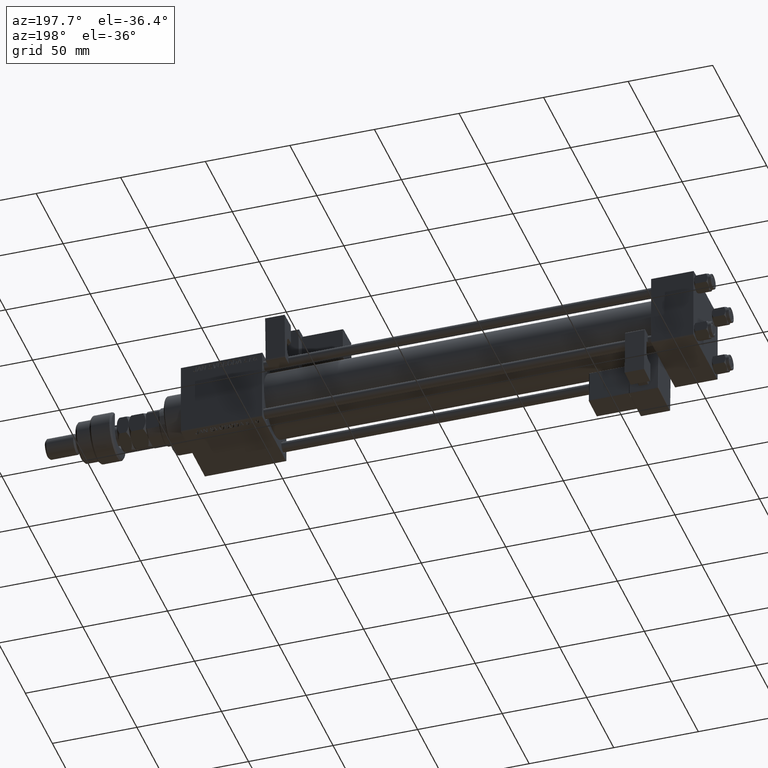
[diagram: clean part render]
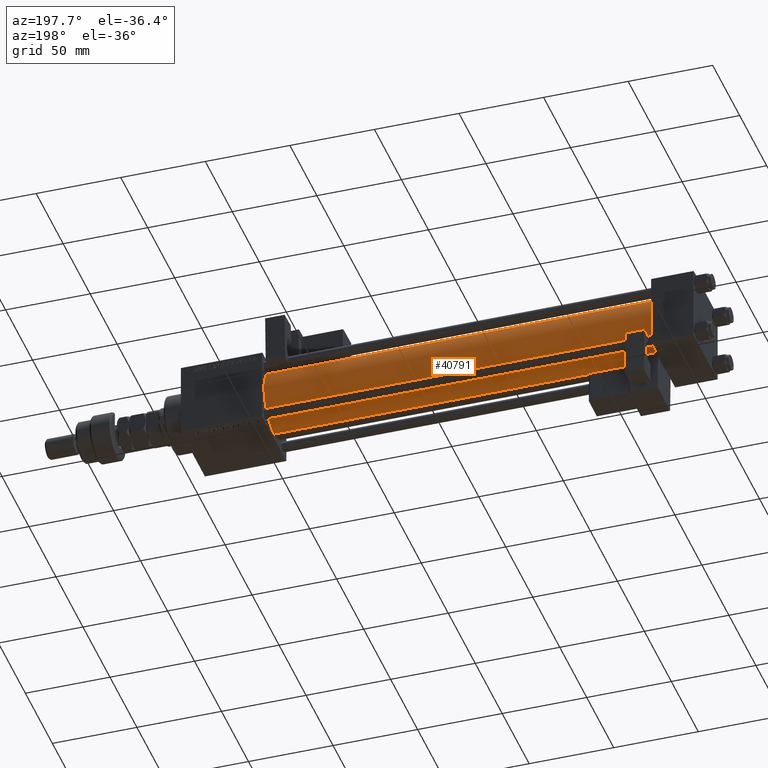
[diagram: same view with one face highlighted and labeled with its STEP entity id]
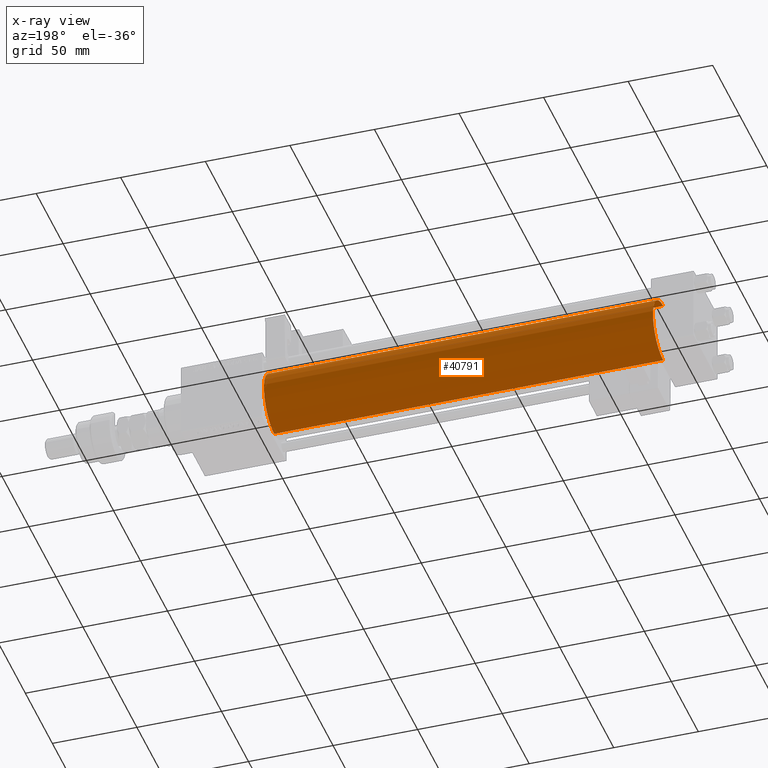
[diagram: x-ray of the same camera — body ghosted, the highlighted face saturated]
A machine part, auxiliary view. The second image highlights one B-rep face of the part: STEP entity #40791.
The next image is the same camera in x-ray: the body ghosted, the highlighted face saturated — about 0% of this face is hidden behind the body in this view.
In plain terms, the highlighted cylindrical surface (edge-blend (fillet) strip) has radius 19 mm, axis along (-1, -0, -0).
Its self-contained STEP definition (entity closure, byte-faithful):
#135 = VERTEX_POINT ( 'NONE', #21557 ) ;
#841 = DIRECTION ( 'NONE',  ( 0.000000000000000000, 0.000000000000000000, 1.000000000000000000 ) ) ;
#1352 = VERTEX_POINT ( 'NONE', #4968 ) ;
#1991 = ORIENTED_EDGE ( 'NONE', *, *, #30028, .T. ) ;
#4108 = EDGE_LOOP ( 'NONE', ( #31234, #19275, #1991, #12945 ) ) ;
#4968 = CARTESIAN_POINT ( 'NONE',  ( 255.0000000000000000, -2.602085213965210642E-15, 19.00000000000000000 ) ) ;
#5061 = DIRECTION ( 'NONE',  ( -1.000000000000000000, -0.000000000000000000, -0.000000000000000000 ) ) ;
#5332 = FACE_OUTER_BOUND ( 'NONE', #4108, .T. ) ;
#9006 = CIRCLE ( 'NONE', #24210, 19.00000000000000000 ) ;
#9415 = AXIS2_PLACEMENT_3D ( 'NONE', #43447, #5061, #841 ) ;
#10088 = CYLINDRICAL_SURFACE ( 'NONE', #9415, 19.00000000000000000 ) ;
#10960 = DIRECTION ( 'NONE',  ( -1.000000000000000000, -0.000000000000000000, -0.000000000000000000 ) ) ;
#11232 = LINE ( 'NONE', #28328, #47563 ) ;
#12945 = ORIENTED_EDGE ( 'NONE', *, *, #36041, .F. ) ;
#16533 = LINE ( 'NONE', #50169, #32337 ) ;
#16833 = DIRECTION ( 'NONE',  ( 0.000000000000000000, 0.000000000000000000, -1.000000000000000000 ) ) ;
#18837 = DIRECTION ( 'NONE',  ( 1.000000000000000000, -0.000000000000000000, 0.000000000000000000 ) ) ;
#19275 = ORIENTED_EDGE ( 'NONE', *, *, #35148, .T. ) ;
#20052 = VERTEX_POINT ( 'NONE', #44560 ) ;
#21557 = CARTESIAN_POINT ( 'NONE',  ( 24.99999999999999289, -2.752562955852396712E-16, -19.00000000000000000 ) ) ;
#23050 = CARTESIAN_POINT ( 'NONE',  ( 24.99999999999999289, -2.602085213965210642E-15, 0.000000000000000000 ) ) ;
#24210 = AXIS2_PLACEMENT_3D ( 'NONE', #23050, #18837, #45994 ) ;
#25215 = DIRECTION ( 'NONE',  ( -1.000000000000000000, -0.000000000000000000, -0.000000000000000000 ) ) ;
#25910 = VERTEX_POINT ( 'NONE', #42062 ) ;
#28328 = CARTESIAN_POINT ( 'NONE',  ( 255.0000000000000000, -2.602085213965210642E-15, 19.00000000000000000 ) ) ;
#29997 = DIRECTION ( 'NONE',  ( 1.000000000000000000, 0.000000000000000000, 0.000000000000000000 ) ) ;
#30028 = EDGE_CURVE ( 'NONE', #135, #25910, #9006, .T. ) ;
#30734 = CIRCLE ( 'NONE', #46828, 19.00000000000000000 ) ;
#31234 = ORIENTED_EDGE ( 'NONE', *, *, #39875, .F. ) ;
#32337 = VECTOR ( 'NONE', #25215, 1000.000000000000000 ) ;
#35148 = EDGE_CURVE ( 'NONE', #20052, #135, #16533, .T. ) ;
#36041 = EDGE_CURVE ( 'NONE', #1352, #25910, #11232, .T. ) ;
#39875 = EDGE_CURVE ( 'NONE', #20052, #1352, #30734, .T. ) ;
#40791 = ADVANCED_FACE ( 'NONE', ( #5332 ), #10088, .T. ) ;
#42062 = CARTESIAN_POINT ( 'NONE',  ( 24.99999999999999289, -2.602085213965210642E-15, 19.00000000000000000 ) ) ;
#43447 = CARTESIAN_POINT ( 'NONE',  ( 255.0000000000000000, -2.602085213965210642E-15, 0.000000000000000000 ) ) ;
#44560 = CARTESIAN_POINT ( 'NONE',  ( 255.0000000000000000, -2.752562955852396712E-16, -19.00000000000000000 ) ) ;
#45994 = DIRECTION ( 'NONE',  ( 0.000000000000000000, 0.000000000000000000, 1.000000000000000000 ) ) ;
#46828 = AXIS2_PLACEMENT_3D ( 'NONE', #51287, #29997, #16833 ) ;
#47563 = VECTOR ( 'NONE', #10960, 1000.000000000000000 ) ;
#50169 = CARTESIAN_POINT ( 'NONE',  ( 255.0000000000000000, -2.752562955852396712E-16, -19.00000000000000000 ) ) ;
#51287 = CARTESIAN_POINT ( 'NONE',  ( 255.0000000000000000, -2.602085213965210642E-15, 0.000000000000000000 ) ) ;